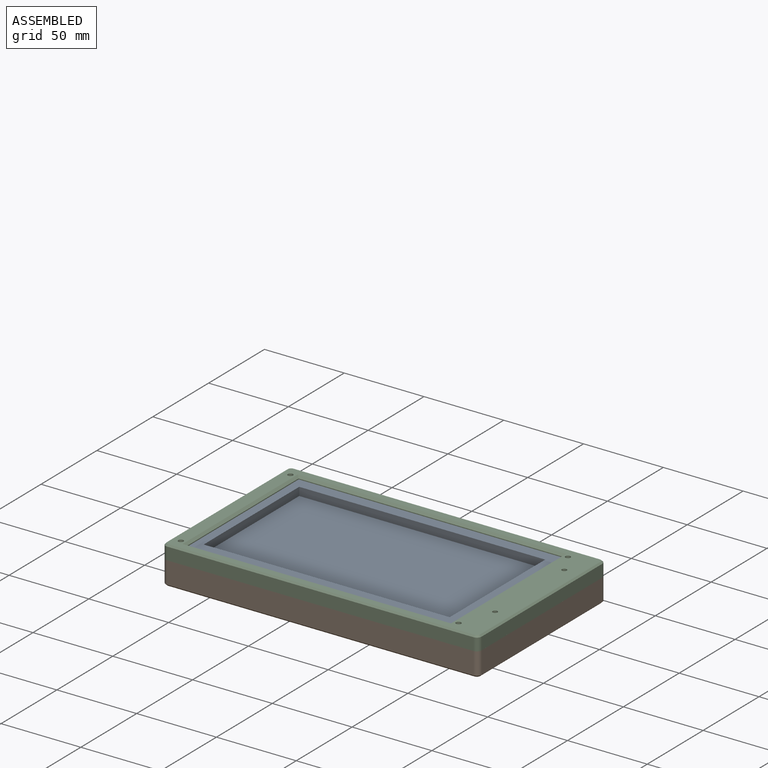
[diagram: assembled view]
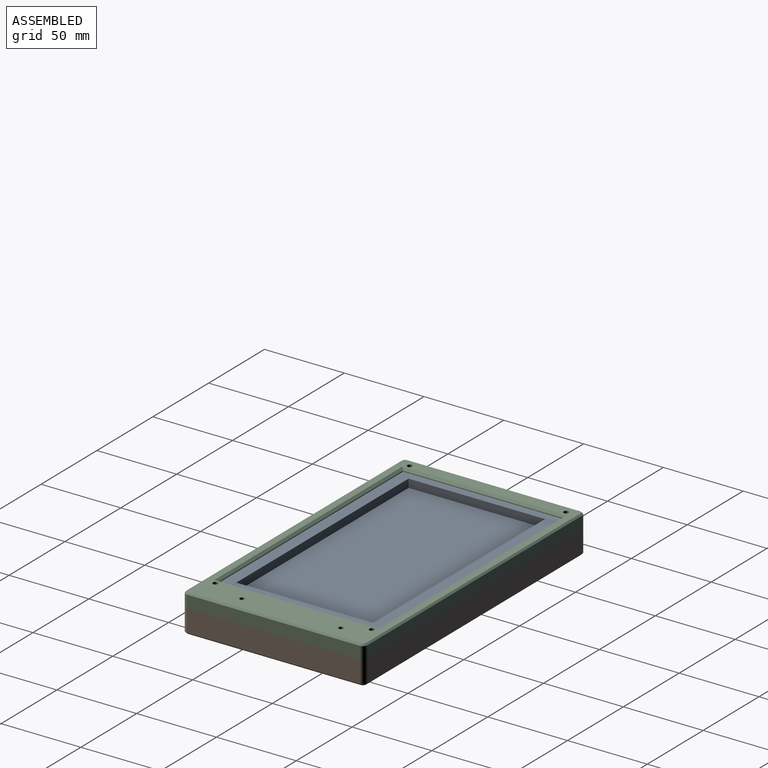
[diagram: assembled view, second angle]
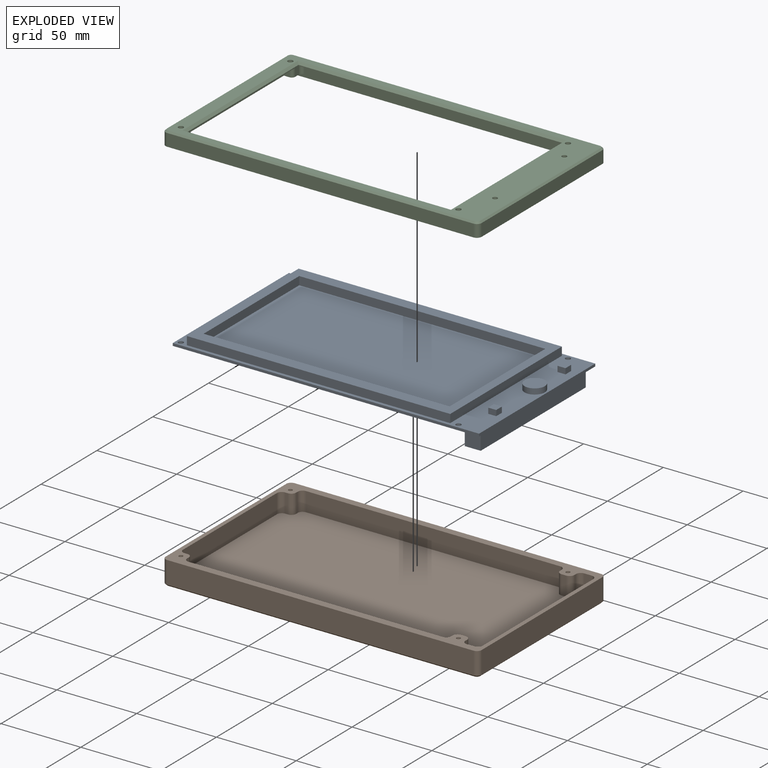
[diagram: exploded view]
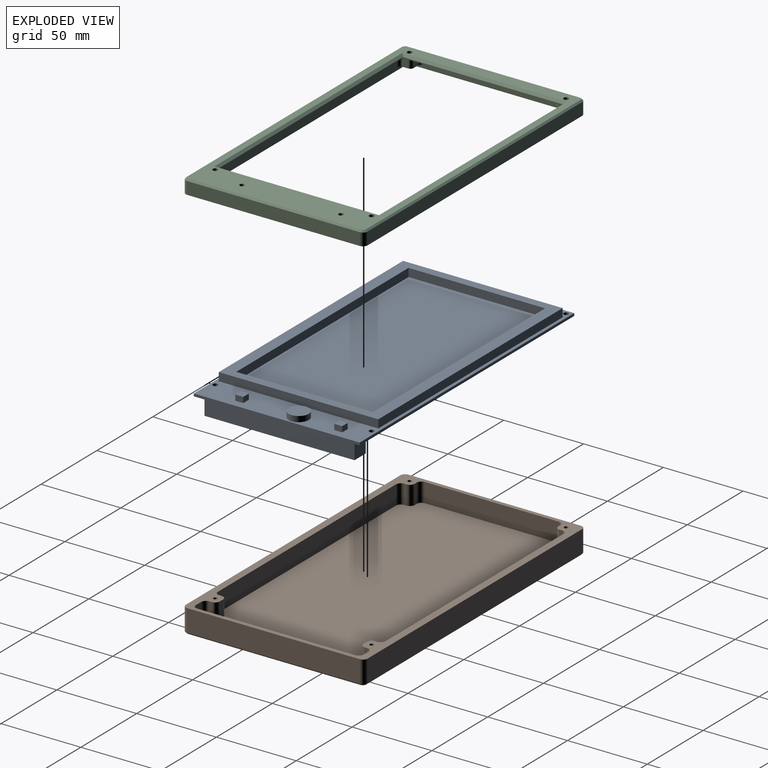
[diagram: exploded view, second angle]
ASSEMBLY  parts=3 mates=2
PART A: 37 faces, bbox 192x104x17.5 mm
  f0: plane 192x104mm, normal (0,0,1), area 3259.2mm2, adj f1,f2,f3,f4,f5,f6,f7,f8
  f1: plane 192x1.6mm, normal (0,-1,0), area 307.2mm2, adj f0,f2,f8,f9
  f2: plane 104x1.6mm, normal (1,0,0), area 166.4mm2, adj f0,f1,f3,f9
  f3: plane 192x1.6mm, normal (0,1,0), area 307.2mm2, adj f0,f2,f8,f9
  f4: cylinder r=1.6mm len=3.2mm, axis (0,0,1), area 16.1mm2, adj f0,f9
  f5: cylinder r=1.6mm len=3.2mm, axis (0,0,1), area 16.1mm2, adj f0,f9
  f6: cylinder r=1.6mm len=3.2mm, axis (0,0,1), area 16.1mm2, adj f0,f9
  f7: cylinder r=1.6mm len=3.2mm, axis (0,0,1), area 16.1mm2, adj f0,f9
  f8: plane 104x1.6mm, normal (-1,0,0), area 166.4mm2, adj f0,f1,f3,f9
  f9: plane 192x104mm, normal (0,0,-1), area 18995.8mm2, adj f1,f2,f3,f4,f5,f6,f7,f8
  f10: plane 165x5.2mm, normal (0,1,0), area 858mm2, adj f0,f11,f17,f18
  f11: plane 100x5.2mm, normal (-1,0,0), area 520mm2, adj f0,f10,f12,f18
  f12: plane 165x5.2mm, normal (0,-1,0), area 858mm2, adj f0,f11,f17,f18
  f13: plane 154.2x5.2mm, normal (0,-1,0), area 801.8mm2, adj f14,f16,f18,f19
  f14: plane 85.6x5.2mm, normal (-1,0,0), area 445.1mm2, adj f13,f15,f18,f19
  f15: plane 154.2x5.2mm, normal (0,1,0), area 801.8mm2, adj f14,f16,f18,f19
  f16: plane 85.6x5.2mm, normal (1,0,0), area 445.1mm2, adj f13,f15,f18,f19
  f17: plane 100x5.2mm, normal (1,0,0), area 520mm2, adj f0,f10,f12,f18
  f18: plane 165x100mm, normal (0,0,1), area 3300.8mm2, adj f10,f11,f12,f13,f14,f15,f16,f17
  f19: plane 154.2x85.6mm, normal (0,0,1), area 13199.2mm2, adj f13,f14,f15,f16
  f20: plane 5x3.5mm, normal (0,-1,0), area 17.5mm2, adj f0,f21,f23,f24
  f21: plane 5x3.5mm, normal (1,0,0), area 17.5mm2, adj f0,f20,f22,f24
  f22: plane 5x3.5mm, normal (0,1,0), area 17.5mm2, adj f0,f21,f23,f24
  f23: plane 5x3.5mm, normal (-1,0,0), area 17.5mm2, adj f0,f20,f22,f24
  f24: plane 5x5mm, normal (0,0,1), area 25mm2, adj f20,f21,f22,f23
  f25: plane 5x3.5mm, normal (0,-1,0), area 17.5mm2, adj f0,f26,f28,f29
  f26: plane 5x3.5mm, normal (1,0,0), area 17.5mm2, adj f0,f25,f27,f29
  f27: plane 5x3.5mm, normal (0,1,0), area 17.5mm2, adj f0,f26,f28,f29
  f28: plane 5x3.5mm, normal (-1,0,0), area 17.5mm2, adj f0,f25,f27,f29
  f29: plane 5x5mm, normal (0,0,1), area 25mm2, adj f25,f26,f27,f28
  f30: cylinder r=6.35mm len=12.7mm, axis (0,0,-1), area 139.6mm2, adj f0,f31
  f31: plane 12.7x12.7mm, normal (0,0,1), area 126.7mm2, adj f30
  f32: plane 94x10.67mm, normal (1,0,0), area 1003mm2, adj f9,f33,f35,f36
  f33: plane 10.67x10mm, normal (0,-1,0), area 106.7mm2, adj f9,f32,f34,f36
  f34: plane 94x10.67mm, normal (-1,0,0), area 1003mm2, adj f9,f33,f35,f36
  f35: plane 10.67x10mm, normal (0,1,0), area 106.7mm2, adj f9,f32,f34,f36
  f36: plane 94x10mm, normal (0,0,-1), area 940mm2, adj f32,f33,f34,f35
PART B: 75 faces, bbox 198x114x15 mm
  f0: plane 193x105mm, normal (0,0,1), area 19836.3mm2, adj f2,f3,f4,f5,f6,f7,f8,f9
  f1: plane 196x112mm, normal (0,0,-1), area 21632mm2, adj f39,f40,f41,f42,f43,f44,f45,f46
  f2: plane 12x1.8mm, normal (0,1,0), area 21.6mm2, adj f0,f19,f70,f71
  f3: plane 12x1.5mm, normal (1,0,0), area 18mm2, adj f0,f19,f71,f72
  f4: plane 12x1.8mm, normal (0,-1,0), area 21.6mm2, adj f0,f19,f67,f69
  f5: plane 12x1.5mm, normal (1,0,0), area 18mm2, adj f0,f19,f68,f69
  f6: plane 12x3mm, normal (0,-1,0), area 36mm2, adj f0,f19,f63,f64
  f7: plane 12x1.5mm, normal (-1,0,0), area 18mm2, adj f0,f19,f64,f65
  f8: plane 12x1.5mm, normal (1,0,0), area 18mm2, adj f0,f19,f63,f66
  f9: plane 12x1.5mm, normal (-1,0,0), area 18mm2, adj f0,f19,f59,f60
  f10: plane 12x3mm, normal (0,1,0), area 36mm2, adj f0,f19,f60,f61
  f11: plane 12x1.5mm, normal (1,0,0), area 18mm2, adj f0,f19,f61,f62
  f12: plane 159.4x12mm, normal (0,1,0), area 1912.8mm2, adj f0,f19,f59,f72
  f13: plane 159.4x12mm, normal (0,-1,0), area 1912.8mm2, adj f0,f19,f65,f68
  f14: plane 84x12mm, normal (1,0,0), area 1008mm2, adj f0,f19,f67,f70
  f15: plane 192x14mm, normal (0,1,0), area 2688mm2, adj f19,f35,f38,f42
  f16: plane 108x14mm, normal (-1,0,0), area 1512mm2, adj f19,f35,f36,f39
  f17: plane 192x14mm, normal (0,-1,0), area 2688mm2, adj f19,f36,f37,f43
  f18: plane 108x14mm, normal (1,0,0), area 1512mm2, adj f19,f37,f38,f46
  f19: plane 198x114mm, normal (0,0,1), area 2539.4mm2, adj f2,f3,f4,f5,f6,f7,f8,f9
  f20: plane 12x4.8mm, normal (0,-1,0), area 57.6mm2, adj f0,f19,f66,f73
  f21: plane 12x4.8mm, normal (0,1,0), area 57.6mm2, adj f0,f19,f62,f74
  f22: plane 99x12mm, normal (-1,0,0), area 1188mm2, adj f0,f19,f73,f74
  f23: cylinder r=1.25mm len=14mm, axis (0,0,1), area 110mm2, adj f19,f58
  f24: cylinder r=1.25mm len=14mm, axis (0,0,1), area 110mm2, adj f19,f55
  f25: cylinder r=1.25mm len=14mm, axis (0,0,1), area 110mm2, adj f19,f56
  f26: cylinder r=1.25mm len=14mm, axis (0,0,1), area 110mm2, adj f19,f57
  f27: plane 7x2mm, normal (0,1,0), area 14mm2, adj f0,f28,f30,f48
  f28: plane 12x2mm, normal (-1,0,0), area 24mm2, adj f0,f27,f29,f47
  f29: plane 7x2mm, normal (0,-1,0), area 14mm2, adj f0,f28,f30,f49
  f30: plane 12x2mm, normal (1,0,0), area 24mm2, adj f0,f27,f29,f50
  f31: plane 7.2x2mm, normal (0,1,0), area 14.4mm2, adj f0,f32,f34,f52
  f32: plane 11.8x2mm, normal (-1,0,0), area 23.6mm2, adj f0,f31,f33,f51
  f33: plane 7.2x2mm, normal (0,-1,0), area 14.4mm2, adj f0,f32,f34,f53
  f34: plane 11.8x2mm, normal (1,0,0), area 23.6mm2, adj f0,f31,f33,f54
  f35: cylinder r=3mm len=14mm, axis (0,0,-1), area 66mm2, adj f15,f16,f19,f40
  f36: cylinder r=3mm len=14mm, axis (0,0,1), area 66mm2, adj f16,f17,f19,f41
  f37: cylinder r=3mm len=14mm, axis (0,0,-1), area 66mm2, adj f17,f18,f19,f45
  f38: cylinder r=3mm len=14mm, axis (0,0,1), area 66mm2, adj f15,f18,f19,f44
  f39: plane 108x1mm, normal (-0.71,0,-0.71), area 152.7mm2, adj f1,f16,f40,f41
  f40: cone r=2mm half-angle=45deg, axis (0,0,1), area 5.6mm2, adj f1,f35,f39,f42
  f41: cone r=2mm half-angle=45deg, axis (0,0,1), area 5.6mm2, adj f1,f36,f39,f43
  f42: plane 192x1mm, normal (0,0.71,-0.71), area 271.5mm2, adj f1,f15,f40,f44
  f43: plane 192x1mm, normal (0,-0.71,-0.71), area 271.5mm2, adj f1,f17,f41,f45
  f44: cone r=2mm half-angle=45deg, axis (0,0,1), area 5.6mm2, adj f1,f38,f42,f46
  f45: cone r=2mm half-angle=45deg, axis (0,0,1), area 5.6mm2, adj f1,f37,f43,f46
  f46: plane 108x1mm, normal (0.71,0,-0.71), area 152.7mm2, adj f1,f18,f44,f45
  f47: plane 14x1mm, normal (-0.71,0,-0.71), area 18.4mm2, adj f1,f28,f48,f49
  f48: plane 9x1mm, normal (0,0.71,-0.71), area 11.3mm2, adj f1,f27,f47,f50
  f49: plane 9x1mm, normal (0,-0.71,-0.71), area 11.3mm2, adj f1,f29,f47,f50
  f50: plane 14x1mm, normal (0.71,0,-0.71), area 18.4mm2, adj f1,f30,f48,f49
  f51: plane 13.8x1mm, normal (-0.71,0,-0.71), area 18.1mm2, adj f1,f32,f52,f53
  f52: plane 9.2x1mm, normal (0,0.71,-0.71), area 11.6mm2, adj f1,f31,f51,f54
  f53: plane 9.2x1mm, normal (0,-0.71,-0.71), area 11.6mm2, adj f1,f33,f51,f54
  f54: plane 13.8x1mm, normal (0.71,0,-0.71), area 18.1mm2, adj f1,f34,f52,f53
  f55: cone r=2.25mm half-angle=45deg, axis (0,0,-1), area 15.6mm2, adj f1,f24
  f56: cone r=2.25mm half-angle=45deg, axis (0,0,-1), area 15.6mm2, adj f1,f25
  f57: cone r=2.25mm half-angle=45deg, axis (0,0,-1), area 15.6mm2, adj f1,f26
  f58: cone r=2.25mm half-angle=45deg, axis (0,0,-1), area 15.6mm2, adj f1,f23
  f59: cylinder r=3mm len=12mm, axis (0,0,-1), area 56.5mm2, adj f0,f9,f12,f19
  f60: cylinder r=3mm len=12mm, axis (0,0,1), area 56.5mm2, adj f0,f9,f10,f19
  f61: cylinder r=3mm len=12mm, axis (0,0,-1), area 56.5mm2, adj f0,f10,f11,f19
  f62: cylinder r=3mm len=12mm, axis (0,0,1), area 56.5mm2, adj f0,f11,f19,f21
  f63: cylinder r=3mm len=12mm, axis (0,0,-1), area 56.5mm2, adj f0,f6,f8,f19
  f64: cylinder r=3mm len=12mm, axis (0,0,-1), area 56.5mm2, adj f0,f6,f7,f19
  f65: cylinder r=3mm len=12mm, axis (0,0,-1), area 56.5mm2, adj f0,f7,f13,f19
  f66: cylinder r=3mm len=12mm, axis (0,0,-1), area 56.5mm2, adj f0,f8,f19,f20
  f67: cylinder r=3mm len=12mm, axis (0,0,1), area 56.5mm2, adj f0,f4,f14,f19
  f68: cylinder r=3mm len=12mm, axis (0,0,-1), area 56.5mm2, adj f0,f5,f13,f19
  f69: cylinder r=3mm len=12mm, axis (0,0,1), area 56.5mm2, adj f0,f4,f5,f19
  f70: cylinder r=3mm len=12mm, axis (0,0,-1), area 56.5mm2, adj f0,f2,f14,f19
  f71: cylinder r=3mm len=12mm, axis (0,0,1), area 56.5mm2, adj f0,f2,f3,f19
  f72: cylinder r=3mm len=12mm, axis (0,0,-1), area 56.5mm2, adj f0,f3,f12,f19
  f73: cylinder r=3mm len=12mm, axis (0,0,-1), area 56.5mm2, adj f0,f19,f20,f22
  f74: cylinder r=3mm len=12mm, axis (0,0,1), area 56.5mm2, adj f0,f19,f21,f22
PART C: 66 faces, bbox 198x114x8.8 mm
  f0: plane 165.4x2.3mm, normal (0,0,-1), area 378.7mm2, adj f1,f16,f17,f19,f36,f49
  f1: plane 193x6.8mm, normal (0,1,0), area 1198.4mm2, adj f0,f5,f7,f12,f13,f22,f29,f36
  f2: plane 165.4x2.3mm, normal (0,0,-1), area 378.7mm2, adj f3,f17,f18,f19,f42,f45
  f3: plane 193x6.8mm, normal (0,-1,0), area 1198.4mm2, adj f2,f5,f7,f12,f13,f24,f26,f42
  f4: plane 94x7.8mm, normal (0,0,-1), area 702mm2, adj f12,f19,f23,f25,f44,f46,f47,f48
  f5: plane 105x19.8mm, normal (0,0,-1), area 1796.8mm2, adj f1,f3,f13,f14,f15,f17,f20,f27
  f6: plane 196x112mm, normal (0,0,1), area 4544mm2, adj f14,f15,f32,f33,f34,f35,f50,f51
  f7: plane 198x114mm, normal (0,0,-1), area 2299.3mm2, adj f1,f3,f8,f9,f10,f11,f12,f13
  f8: plane 192x7.8mm, normal (0,1,0), area 1497.6mm2, adj f7,f54,f57,f65
  f9: plane 108x7.8mm, normal (-1,0,0), area 842.4mm2, adj f7,f54,f55,f61
  f10: plane 192x7.8mm, normal (0,-1,0), area 1497.6mm2, adj f7,f55,f56,f58
  f11: plane 108x7.8mm, normal (1,0,0), area 842.4mm2, adj f7,f56,f57,f62
  f12: plane 105x6.8mm, normal (1,0,0), area 619mm2, adj f1,f3,f4,f7,f22,f24,f44,f47
  f13: plane 105x6.8mm, normal (-1,0,0), area 714mm2, adj f1,f3,f5,f7
  f14: cylinder r=1.5mm len=3mm, axis (0,0,-1), area 18.8mm2, adj f5,f6
  f15: cylinder r=1.5mm len=3mm, axis (0,0,-1), area 18.8mm2, adj f5,f6
  f16: plane 165.4x0.6mm, normal (0,1,0), area 99.2mm2, adj f0,f17,f19,f52
  f17: plane 101x5.6mm, normal (-1,0,0), area 95.2mm2, adj f0,f2,f5,f16,f18,f26,f29,f36
  f18: plane 165.4x0.6mm, normal (0,-1,0), area 99.2mm2, adj f2,f17,f19,f51
  f19: plane 101x5.6mm, normal (1,0,0), area 95.2mm2, adj f0,f2,f4,f16,f18,f22,f24,f45
  f20: cylinder r=6.55mm len=13.1mm, axis (0,0,-1), area 41.2mm2, adj f5,f21
  f21: plane 13.1x13.1mm, normal (0,0,-1), area 134.8mm2, adj f20
  f22: plane 9.8x9.5mm, normal (0,0,-1), area 51.3mm2, adj f1,f12,f19,f23,f35,f47,f48,f49
  f23: plane 5x3.8mm, normal (0,1,0), area 19mm2, adj f4,f22,f47,f48
  f24: plane 9.8x9.5mm, normal (0,0,-1), area 51.3mm2, adj f3,f12,f19,f25,f34,f44,f45,f46
  f25: plane 5x3.8mm, normal (0,-1,0), area 19mm2, adj f4,f24,f44,f46
  f26: plane 13x7.5mm, normal (0,0,-1), area 59.5mm2, adj f3,f17,f27,f28,f33,f40,f41,f42
  f27: plane 5x5mm, normal (0,-1,0), area 25mm2, adj f5,f26,f40,f41
  f28: plane 5x3.5mm, normal (1,0,0), area 17.5mm2, adj f5,f26,f40,f43
  f29: plane 13x7.5mm, normal (0,0,-1), area 59.5mm2, adj f1,f17,f30,f31,f32,f36,f37,f38
  f30: plane 5x5mm, normal (0,1,0), area 25mm2, adj f5,f29,f37,f38
  f31: plane 5x3.5mm, normal (1,0,0), area 17.5mm2, adj f5,f29,f38,f39
  f32: cylinder r=1.6mm len=7mm, axis (0,0,1), area 70.4mm2, adj f6,f29
  f33: cylinder r=1.6mm len=7mm, axis (0,0,1), area 70.4mm2, adj f6,f26
  f34: cylinder r=1.6mm len=7mm, axis (0,0,1), area 70.4mm2, adj f6,f24
  f35: cylinder r=1.6mm len=7mm, axis (0,0,1), area 70.4mm2, adj f6,f22
  f36: cylinder r=2mm len=5mm, axis (0,0,-1), area 15.7mm2, adj f0,f1,f17,f29
  f37: cylinder r=2mm len=5mm, axis (0,0,-1), area 15.7mm2, adj f5,f17,f29,f30
  f38: cylinder r=2mm len=5mm, axis (0,0,-1), area 15.7mm2, adj f5,f29,f30,f31
  f39: cylinder r=2mm len=5mm, axis (0,0,-1), area 15.7mm2, adj f1,f5,f29,f31
  f40: cylinder r=2mm len=5mm, axis (0,0,-1), area 15.7mm2, adj f5,f26,f27,f28
  f41: cylinder r=2mm len=5mm, axis (0,0,-1), area 15.7mm2, adj f5,f17,f26,f27
  f42: cylinder r=2mm len=5mm, axis (0,0,1), area 15.7mm2, adj f2,f3,f17,f26
  f43: cylinder r=2mm len=5mm, axis (0,0,1), area 15.7mm2, adj f3,f5,f26,f28
  f44: cylinder r=2mm len=5mm, axis (0,0,-1), area 15.7mm2, adj f4,f12,f24,f25
  f45: cylinder r=2mm len=5mm, axis (0,0,-1), area 15.7mm2, adj f2,f3,f19,f24
  f46: cylinder r=2mm len=5mm, axis (0,0,-1), area 15.7mm2, adj f4,f19,f24,f25
  f47: cylinder r=2mm len=5mm, axis (0,0,1), area 15.7mm2, adj f4,f12,f22,f23
  f48: cylinder r=2mm len=5mm, axis (0,0,1), area 15.7mm2, adj f4,f19,f22,f23
  f49: cylinder r=2mm len=5mm, axis (0,0,1), area 15.7mm2, adj f0,f1,f19,f22
  f50: plane 103.2x1.4mm, normal (0.71,0,0.71), area 201.6mm2, adj f6,f19,f51,f52
  f51: plane 168.2x1.4mm, normal (0,-0.71,0.71), area 330.2mm2, adj f6,f18,f50,f53
  f52: plane 168.2x1.4mm, normal (0,0.71,0.71), area 330.2mm2, adj f6,f16,f50,f53
  f53: plane 103.2x1.4mm, normal (-0.71,0,0.71), area 201.6mm2, adj f6,f17,f51,f52
  f54: cylinder r=3mm len=7.8mm, axis (0,0,1), area 36.8mm2, adj f7,f8,f9,f63
  f55: cylinder r=3mm len=7.8mm, axis (0,0,-1), area 36.8mm2, adj f7,f9,f10,f59
  f56: cylinder r=3mm len=7.8mm, axis (0,0,1), area 36.8mm2, adj f7,f10,f11,f60
  f57: cylinder r=3mm len=7.8mm, axis (0,0,-1), area 36.8mm2, adj f7,f8,f11,f64
  f58: plane 192x1mm, normal (0,-0.71,0.71), area 271.5mm2, adj f6,f10,f59,f60
  f59: cone r=2mm half-angle=45deg, axis (0,0,-1), area 5.6mm2, adj f6,f55,f58,f61
  f60: cone r=2mm half-angle=45deg, axis (0,0,-1), area 5.6mm2, adj f6,f56,f58,f62
  f61: plane 108x1mm, normal (-0.71,0,0.71), area 152.7mm2, adj f6,f9,f59,f63
  f62: plane 108x1mm, normal (0.71,0,0.71), area 152.7mm2, adj f6,f11,f60,f64
  f63: cone r=2mm half-angle=45deg, axis (0,0,-1), area 5.6mm2, adj f6,f54,f61,f65
  f64: cone r=2mm half-angle=45deg, axis (0,0,-1), area 5.6mm2, adj f6,f57,f62,f65
  f65: plane 192x1mm, normal (0,0.71,0.71), area 271.5mm2, adj f6,f8,f63,f64
PLACE A t=(0,0,1.6)mm
PLACE B at identity fixed
PLACE C t=(0,0,-0.2)mm
MATE fastened B.f25 <-> A.f7  axis (0,0,1) through (81,49,0)mm
MATE fastened A.f7 <-> C.f33  axis (0,0,1) through (81,49,1.6)mm
